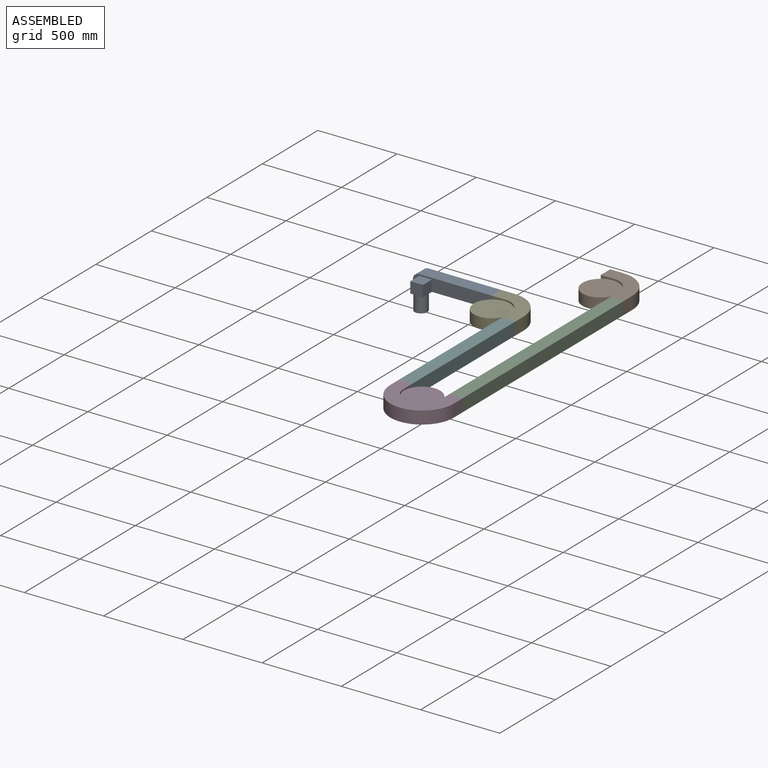
[diagram: assembled view]
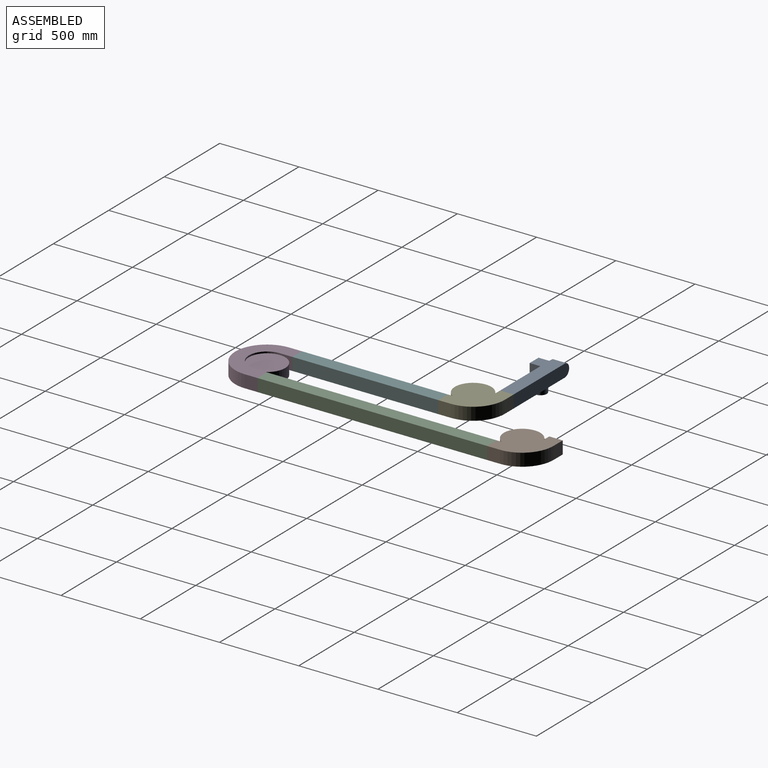
[diagram: assembled view, second angle]
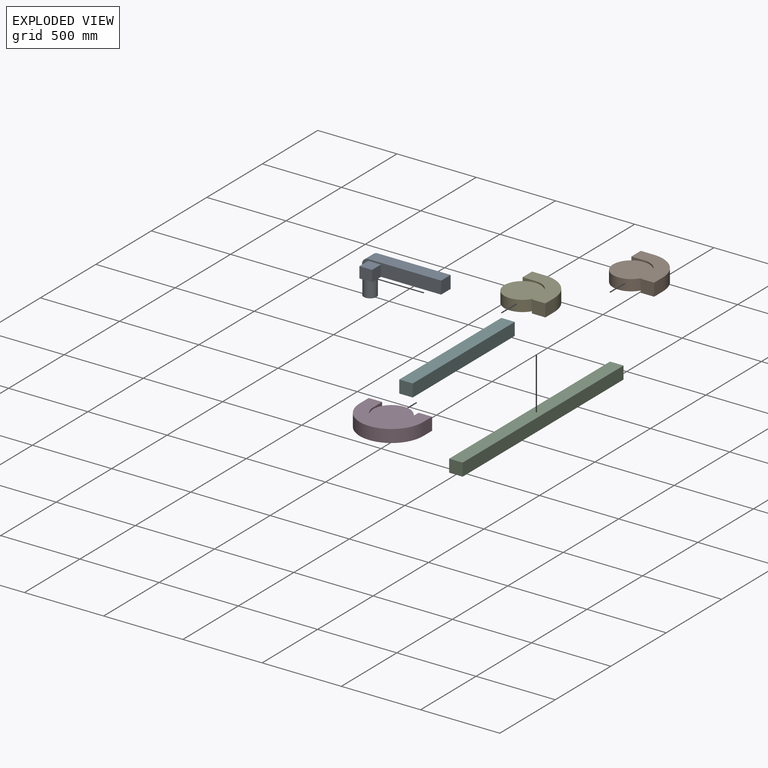
[diagram: exploded view]
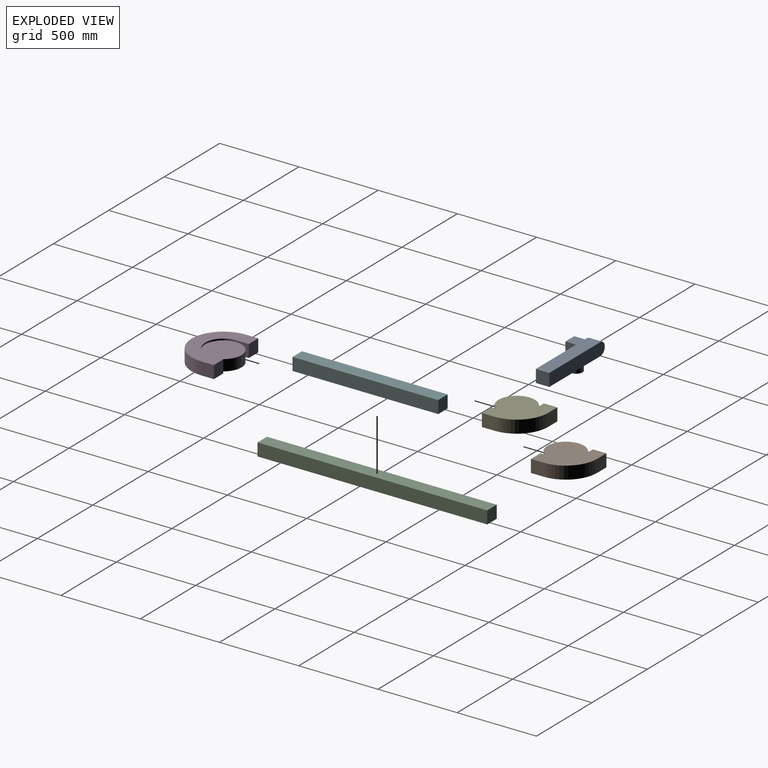
[diagram: exploded view, second angle]
ASSEMBLY  parts=6 mates=5
PART A: 14 faces, bbox 165x500x180 mm
  f0: plane 40x40mm, normal (0,0,-1), area 343.4mm2, adj f8,f9,f11
  f1: plane 460x125mm, normal (0,0,-1), area 39786.7mm2, adj f2,f3,f6,f7,f8,f10,f11
  f2: plane 500x80mm, normal (1,0,0), area 39313.3mm2, adj f1,f5,f6,f7
  f3: plane 500x80mm, normal (-1,0,0), area 33713.3mm2, adj f1,f5,f6,f7,f8,f10,f13
  f4: plane 40x40mm, normal (0,0,-1), area 343.4mm2, adj f9,f10,f11
  f5: plane 460x85mm, normal (0,0,1), area 39100mm2, adj f2,f3,f6,f7
  f6: plane 85x80mm, normal (0,-1,0), area 6800mm2, adj f1,f2,f3,f5
  f7: cylinder r=40mm len=85mm, axis (-1,0,0), area 10681.4mm2, adj f1,f2,f3,f5
  f8: plane 80x70mm, normal (0,1,0), area 5600mm2, adj f0,f1,f3,f9,f13
  f9: plane 80x70mm, normal (-1,0,0), area 5600mm2, adj f0,f4,f8,f10,f13
  f10: plane 80x70mm, normal (0,-1,0), area 5600mm2, adj f1,f3,f4,f9,f13
  f11: cylinder r=40mm len=100mm, axis (0,0,1), area 25132.7mm2, adj f0,f1,f4,f12
  f12: plane 80x80mm, normal (0,0,-1), area 5026.5mm2, adj f11
  f13: plane 80x80mm, normal (0,0,1), area 6400mm2, adj f3,f8,f9,f10
PART B: 12 faces, bbox 315x315x80 mm
  f0: plane 80x80mm, normal (1,0,0), area 6400mm2, adj f1,f7,f8,f9
  f1: cylinder r=200mm len=200mm, axis (0,0,-1), area 25132.7mm2, adj f0,f2,f8,f9
  f2: plane 80x80mm, normal (0,1,0), area 6400mm2, adj f1,f3,f8,f9
  f3: plane 85x80mm, normal (-1,0,0), area 6800mm2, adj f2,f4,f8,f9
  f4: plane 80x80mm, normal (0,-1,0), area 6400mm2, adj f3,f5,f8,f9,f10
  f5: cylinder r=115mm len=115mm, axis (0,0,-1), area 1806.4mm2, adj f4,f6,f8,f11
  f6: plane 80x80mm, normal (-1,0,0), area 6400mm2, adj f5,f7,f8,f9,f10
  f7: plane 85x80mm, normal (0,-1,0), area 6800mm2, adj f0,f6,f8,f9
  f8: plane 280x280mm, normal (0,0,1), area 34629mm2, adj f0,f1,f2,f3,f4,f5,f6,f7
  f9: plane 315x315mm, normal (0,0,-1), area 76176.6mm2, adj f0,f1,f2,f3,f4,f6,f7,f10
  f10: cylinder r=115mm len=230mm, axis (0,0,-1), area 37934.7mm2, adj f4,f6,f9,f11
  f11: plane 230x230mm, normal (0,0,1), area 41547.6mm2, adj f5,f10
PART C: 6 faces, bbox 85x1450x80 mm
  f0: plane 1450x85mm, normal (0,0,-1), area 123250mm2, adj f1,f3,f4,f5
  f1: plane 1450x80mm, normal (1,0,0), area 116000mm2, adj f0,f2,f4,f5
  f2: plane 1450x85mm, normal (0,0,1), area 123250mm2, adj f1,f3,f4,f5
  f3: plane 1450x80mm, normal (-1,0,0), area 116000mm2, adj f0,f2,f4,f5
  f4: plane 85x80mm, normal (0,-1,0), area 6800mm2, adj f0,f1,f2,f3
  f5: plane 85x80mm, normal (0,1,0), area 6800mm2, adj f0,f1,f2,f3
PART D: 17 faces, bbox 315x400x80 mm
  f0: cylinder r=200mm len=400mm, axis (0,0,-1), area 50255.5mm2, adj f2,f3,f8,f9,f13,f14,f15,f16
  f1: plane 85x80mm, normal (-1,0,0), area 6800mm2, adj f2,f7,f8,f9
  f2: plane 80x80mm, normal (0,-1,0), area 6400mm2, adj f0,f1,f8,f9
  f3: plane 80x80mm, normal (0,1,0), area 6400mm2, adj f0,f4,f8,f9
  f4: plane 85x80mm, normal (-1,0,0), area 6800mm2, adj f3,f5,f8,f9
  f5: plane 80x80mm, normal (0,-1,0), area 6400mm2, adj f4,f6,f8,f9,f10
  f6: cylinder r=115mm len=230mm, axis (0,0,-1), area 3612.8mm2, adj f5,f7,f8,f11
  f7: plane 80x80mm, normal (0,1,0), area 6400mm2, adj f1,f6,f8,f9,f10
  f8: plane 400x280mm, normal (0,0,1), area 55658.3mm2, adj f0,f1,f2,f3,f4,f5,f6,f7
  f9: plane 400x315mm, normal (0,0,-1), area 97205.6mm2, adj f0,f1,f2,f3,f4,f5,f7,f10
  f10: cylinder r=115mm len=230mm, axis (0,0,-1), area 25289.8mm2, adj f5,f7,f9,f11
  f11: plane 230x230mm, normal (0,0,1), area 41547.6mm2, adj f6,f10
  f12: plane 10x1mm, normal (1,0,0), area 10mm2, adj f8,f13,f14,f15,f16
  f13: plane 1x0.06mm, normal (0,1,0), area 0.1mm2, adj f0,f8,f12,f14
  f14: plane 5x0.06mm, normal (0,0,-1), area 0.1mm2, adj f0,f12,f13
  f15: plane 1x0.06mm, normal (0,-1,0), area 0.1mm2, adj f0,f8,f12,f16
  f16: plane 5x0.06mm, normal (0,0,-1), area 0.1mm2, adj f0,f12,f15
PART E: same geometry as B
PART F: 6 faces, bbox 85x920x80 mm
  f0: plane 920x85mm, normal (0,0,-1), area 78200mm2, adj f1,f3,f4,f5
  f1: plane 920x80mm, normal (1,0,0), area 73600mm2, adj f0,f2,f4,f5
  f2: plane 920x85mm, normal (0,0,1), area 78200mm2, adj f1,f3,f4,f5
  f3: plane 920x80mm, normal (-1,0,0), area 73600mm2, adj f0,f2,f4,f5
  f4: plane 85x80mm, normal (0,-1,0), area 6800mm2, adj f0,f1,f2,f3
  f5: plane 85x80mm, normal (0,1,0), area 6800mm2, adj f0,f1,f2,f3
PLACE A rot(axis=(0,0,1),90deg) t=(-759.48,-443.01,20.32)mm
PLACE B t=(-114.48,-70.51,-19.68)mm fixed
PLACE C t=(43.02,-875.51,20.32)mm
PLACE D rot(axis=(0,0,-1),90deg) t=(-114.48,-1680.51,-19.68)mm
PLACE E t=(-429.48,-600.51,-19.68)mm
PLACE F t=(-271.98,-1140.51,20.32)mm
MATE fastened B.f7 <-> C.f5  axis (0,-1,0) through (43.02,-150.51,20.32)mm
MATE fastened E.f7 <-> F.f5  axis (0,-1,0) through (-271.98,-680.51,20.32)mm
MATE fastened F.f4 <-> D.f1  axis (0,-1,0) through (-271.98,-1600.51,20.32)mm
MATE fastened C.f4 <-> D.f4  axis (0,-1,0) through (43.02,-1600.51,20.32)mm
MATE fastened E.f3 <-> A.f6  axis (-1,0,0) through (-509.48,-443.01,20.32)mm
